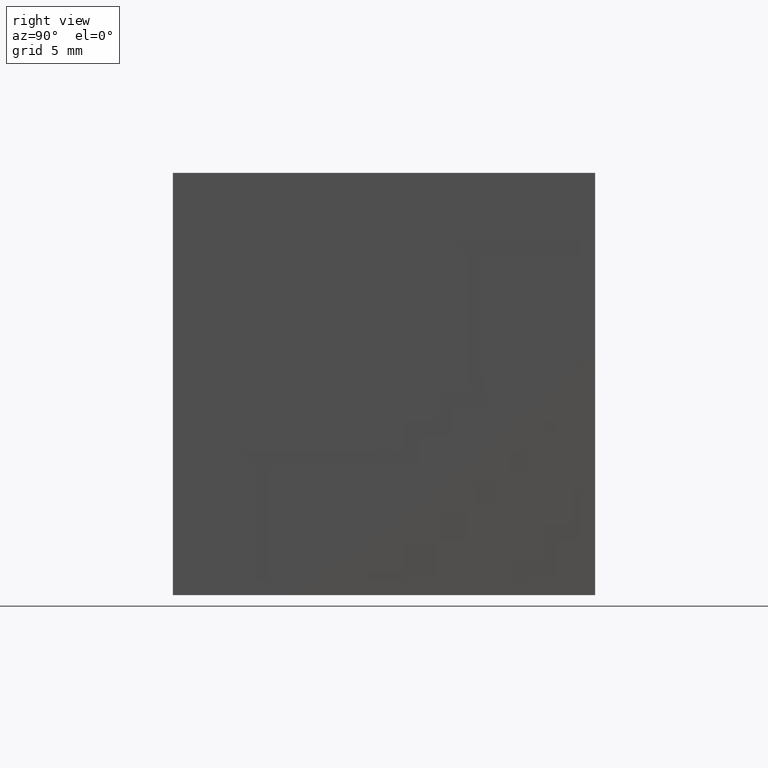
[diagram: clean part render]
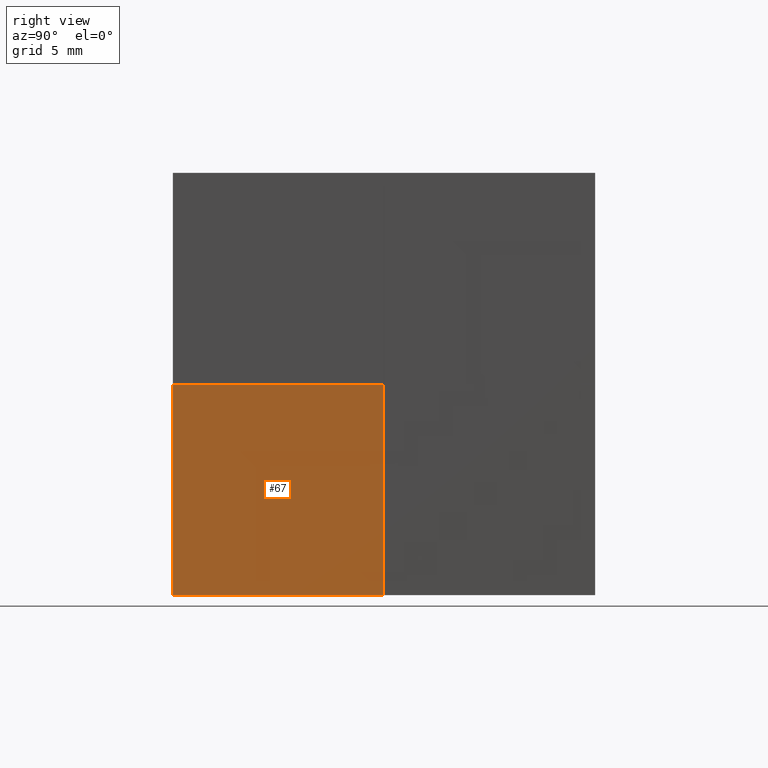
[diagram: same view with one face highlighted and labeled with its STEP entity id]
A machine part, right view. The second image highlights one B-rep face of the part: STEP entity #67.
In plain terms, the highlighted planar face has unit normal (-1, -0, 0).
Its self-contained STEP definition (entity closure, byte-faithful):
#44 = EDGE_CURVE ( 'NONE', #1605, #845, #1677, .T. ) ;
#47 = CARTESIAN_POINT ( 'NONE',  ( 9.999999999999998224, 10.00000000000000178, 10.00000000000000000 ) ) ;
#66 = DIRECTION ( 'NONE',  ( -1.000000000000000000, -1.734723475976807094E-16, 0.0000000000000000000 ) ) ;
#67 = ADVANCED_FACE ( 'NONE', ( #1657 ), #1500, .F. ) ;
#69 = CARTESIAN_POINT ( 'NONE',  ( 10.00000000000000178, -0.01999999999999745037, -0.02000000000000285924 ) ) ;
#78 = DIRECTION ( 'NONE',  ( -1.734723475976807094E-16, 1.000000000000000000, 9.879221949939932797E-17 ) ) ;
#151 = CARTESIAN_POINT ( 'NONE',  ( 10.00000000000000178, -10.00000000000000000, -0.02000000000000384456 ) ) ;
#197 = VERTEX_POINT ( 'NONE', #242 ) ;
#202 = CARTESIAN_POINT ( 'NONE',  ( 10.00000000000000178, -10.00000000000000355, -0.02000000000000384456 ) ) ;
#242 = CARTESIAN_POINT ( 'NONE',  ( 10.00000000000000178, -0.01999999999999745037, -0.02000000000000285924 ) ) ;
#258 = EDGE_CURVE ( 'NONE', #197, #845, #809, .T. ) ;
#427 = AXIS2_PLACEMENT_3D ( 'NONE', #47, #66, #1095 ) ;
#503 = CARTESIAN_POINT ( 'NONE',  ( 9.999952480423061729, -0.01999999999999578504, -9.999926634894451993 ) ) ;
#635 = EDGE_LOOP ( 'NONE', ( #1022, #1072, #1689, #868 ) ) ;
#636 = CARTESIAN_POINT ( 'NONE',  ( 9.999999999999998224, 10.00000000000000178, -10.00000000000000000 ) ) ;
#779 = DIRECTION ( 'NONE',  ( -1.734723475976807094E-16, 1.000000000000000000, -0.0000000000000000000 ) ) ;
#784 = VECTOR ( 'NONE', #78, 1000.000000000000000 ) ;
#809 = LINE ( 'NONE', #69, #1695 ) ;
#811 = DIRECTION ( 'NONE',  ( -0.0000000000000000000, -0.0000000000000000000, -1.000000000000000000 ) ) ;
#821 = CARTESIAN_POINT ( 'NONE',  ( 10.00000000000000178, -9.999999999999998224, 10.00000000000000000 ) ) ;
#845 = VERTEX_POINT ( 'NONE', #503 ) ;
#868 = ORIENTED_EDGE ( 'NONE', *, *, #1229, .T. ) ;
#1022 = ORIENTED_EDGE ( 'NONE', *, *, #44, .T. ) ;
#1072 = ORIENTED_EDGE ( 'NONE', *, *, #258, .F. ) ;
#1095 = DIRECTION ( 'NONE',  ( 1.734723475976807094E-16, -1.000000000000000000, 0.0000000000000000000 ) ) ;
#1222 = VERTEX_POINT ( 'NONE', #151 ) ;
#1229 = EDGE_CURVE ( 'NONE', #1222, #1605, #1330, .T. ) ;
#1330 = LINE ( 'NONE', #821, #1673 ) ;
#1353 = CARTESIAN_POINT ( 'NONE',  ( 10.00000000000000178, -9.999999999999998224, -10.00000000000000000 ) ) ;
#1397 = DIRECTION ( 'NONE',  ( -6.919869049179299098E-32, 3.989032917931074446E-16, -1.000000000000000000 ) ) ;
#1500 = PLANE ( 'NONE',  #427 ) ;
#1533 = LINE ( 'NONE', #202, #784 ) ;
#1605 = VERTEX_POINT ( 'NONE', #1353 ) ;
#1657 = FACE_OUTER_BOUND ( 'NONE', #635, .T. ) ;
#1670 = EDGE_CURVE ( 'NONE', #1222, #197, #1533, .T. ) ;
#1673 = VECTOR ( 'NONE', #811, 1000.000000000000000 ) ;
#1677 = LINE ( 'NONE', #636, #1837 ) ;
#1689 = ORIENTED_EDGE ( 'NONE', *, *, #1670, .F. ) ;
#1695 = VECTOR ( 'NONE', #1397, 1000.000000000000000 ) ;
#1837 = VECTOR ( 'NONE', #779, 1000.000000000000000 ) ;